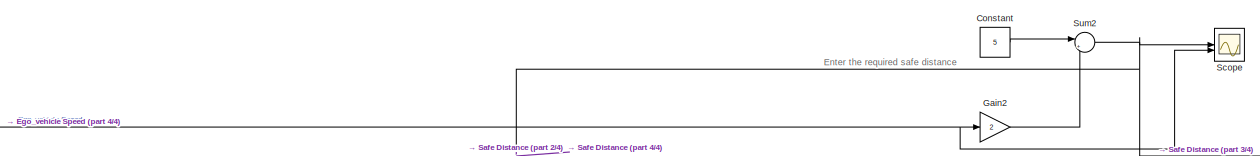
[diagram: root canvas - part 1/4, top center region]
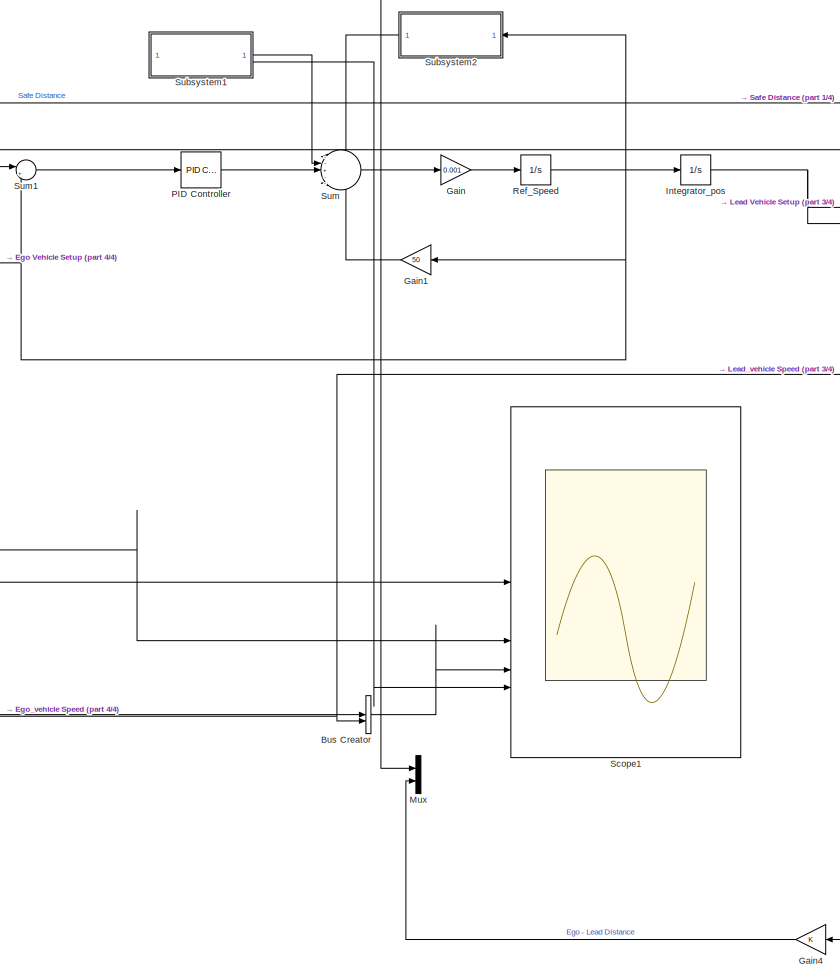
[diagram: root canvas - part 2/4, center side, full height]
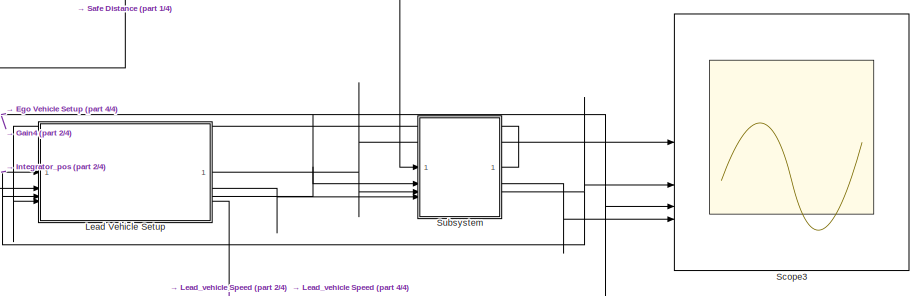
[diagram: root canvas - part 3/4, top right region]
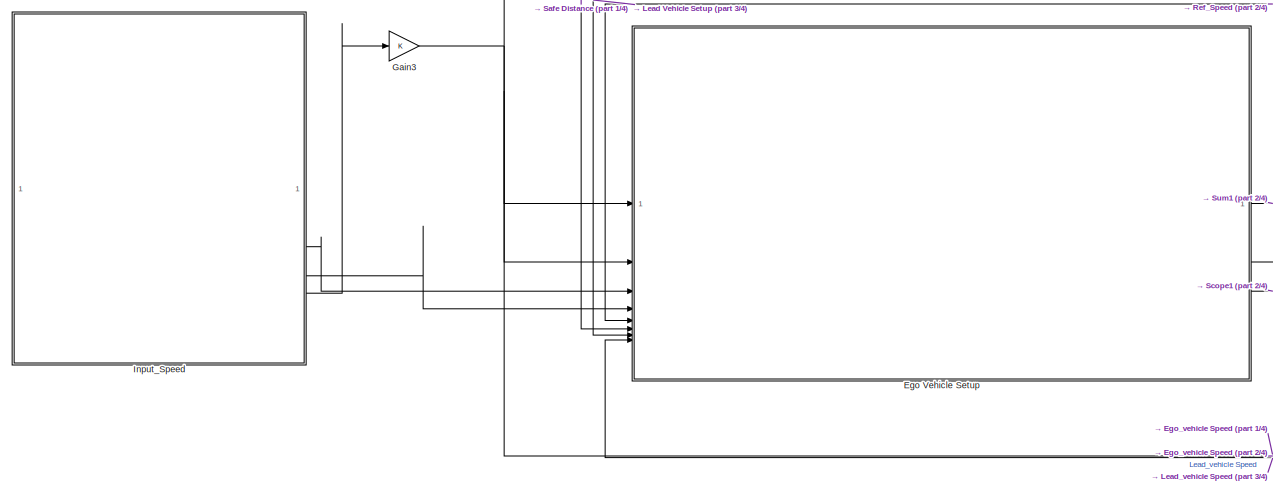
[diagram: root canvas - part 4/4, middle left region]
MODEL slx_3881ea2cf87a
KIND model
CONFIG AbsTol = auto
CONFIG EnableMultiTasking = off
CONFIG FixedStep = auto
CONFIG MaxStep = auto
CONFIG MinStep = auto
CONFIG RelTol = 1e-3
CONFIG SampleTimeConstraint = Unconstrained
CONFIG SolverName = VariableStepAuto
CONFIG StartTime = 0.0
CONFIG StopTime = 300
BLOCK [BusCreator] Bus Creator
  DisplayOption = bar
  InheritFromInputs = on
  Inputs = Ego_vehicle Speed,Lead_vehicle Speed
BLOCK [Constant] Constant
  Value = 5
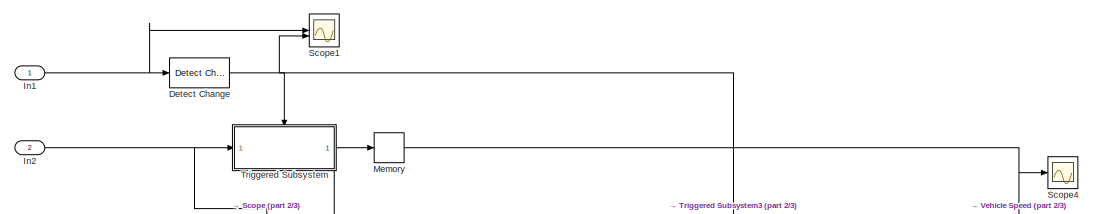
[diagram: Ego Vehicle Setup - part 1/3, top left region]
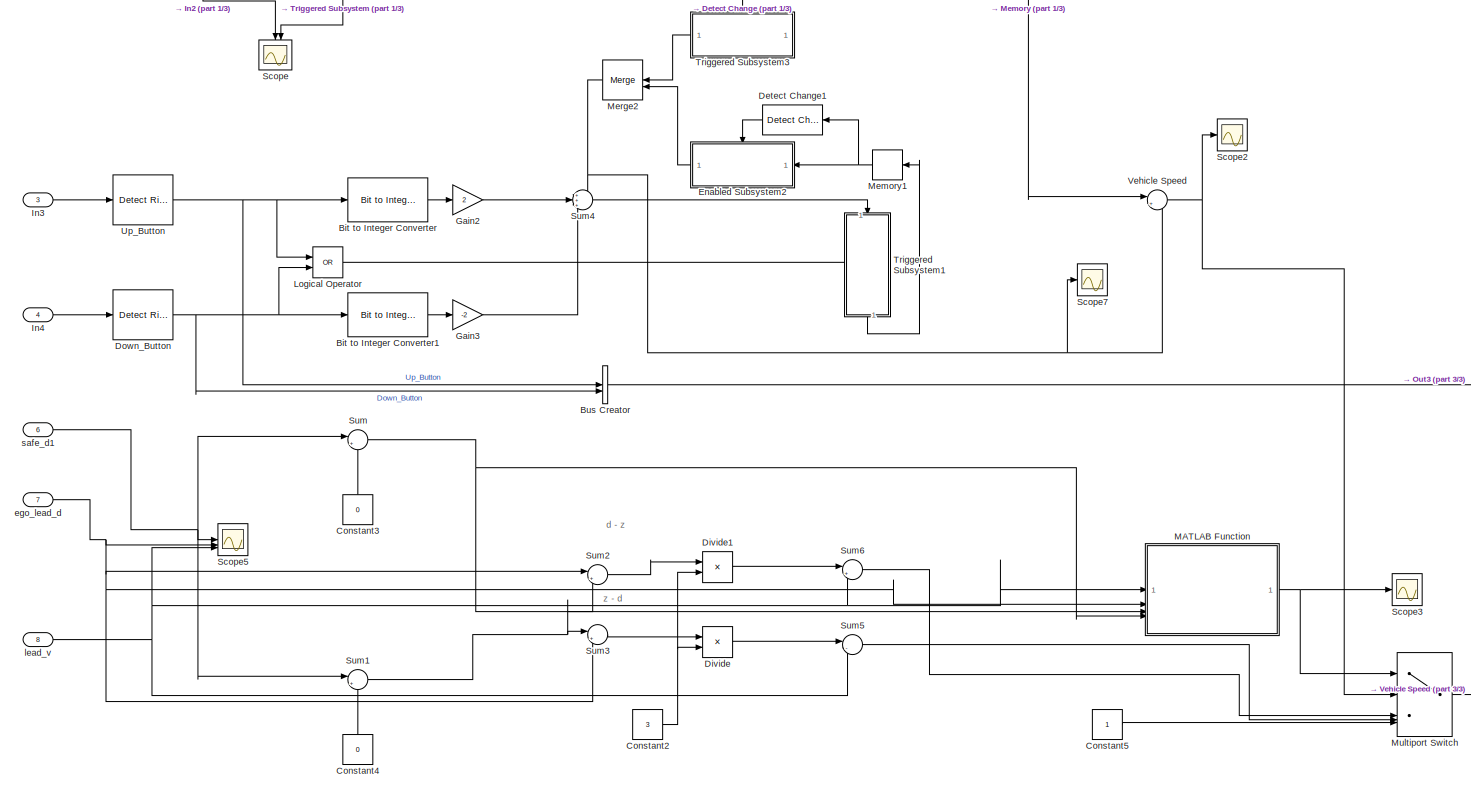
[diagram: Ego Vehicle Setup - part 2/3, most of the canvas]
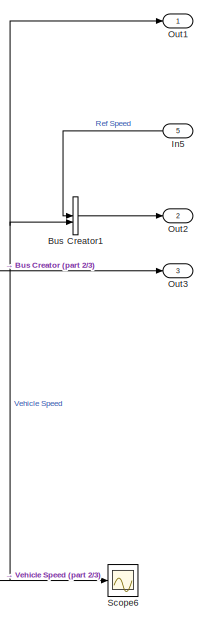
[diagram: Ego Vehicle Setup - part 3/3, middle right region]
BLOCK [SubSystem] Ego Vehicle Setup
  ShowPortLabels = SignalName
BLOCK [Reference] Ego Vehicle Setup/Bit to Integer Converter  REF=simulink/Logic and Bit
Operations/Bit to Integer
Converter
  SourceBlock = simulink/Logic and Bit\nOperations/Bit to Integer\nConverter
  SourceType = Bit to Integer Converter
BLOCK [Reference] Ego Vehicle Setup/Bit to Integer Converter1  REF=simulink/Logic and Bit
Operations/Bit to Integer
Converter
  SourceBlock = simulink/Logic and Bit\nOperations/Bit to Integer\nConverter
  SourceType = Bit to Integer Converter
BLOCK [BusCreator] Ego Vehicle Setup/Bus Creator
  DisplayOption = bar
  InheritFromInputs = on
  Inputs = Up_Button,Down_Button
BLOCK [BusCreator] Ego Vehicle Setup/Bus Creator1
  DisplayOption = bar
  InheritFromInputs = on
  Inputs = Ref Speed,Vehicle Speed
BLOCK [Constant] Ego Vehicle Setup/Constant2
  Value = 3
BLOCK [Constant] Ego Vehicle Setup/Constant3
  NameLocation = right
  Value = 0
BLOCK [Constant] Ego Vehicle Setup/Constant4
  NameLocation = right
  Value = 0
BLOCK [Constant] Ego Vehicle Setup/Constant5
BLOCK [Reference] Ego Vehicle Setup/Detect Change  REF=simulink/Logic and Bit
Operations/Detect
Change
  SourceBlock = simulink/Logic and Bit\nOperations/Detect\nChange
  SourceType = Detect Change
BLOCK [Reference] Ego Vehicle Setup/Detect Change1  REF=simulink/Logic and Bit
Operations/Detect
Change
  NameLocation = top
  SourceBlock = simulink/Logic and Bit\nOperations/Detect\nChange
  SourceType = Detect Change
BLOCK [Product] Ego Vehicle Setup/Divide
  Inputs = */
BLOCK [Product] Ego Vehicle Setup/Divide1
  Inputs = */
BLOCK [Reference] Ego Vehicle Setup/Down_Button  REF=simulink/Logic and Bit
Operations/Detect Rise
Positive
  SourceBlock = simulink/Logic and Bit\nOperations/Detect Rise\nPositive
  SourceType = Detect Rise Positive
BLOCK [SubSystem] Ego Vehicle Setup/Enabled Subsystem2
  TreatAsAtomicUnit = on
BLOCK [EnablePort] Ego Vehicle Setup/Enabled Subsystem2/Enable
BLOCK [Inport] Ego Vehicle Setup/Enabled Subsystem2/In1
BLOCK [Outport] Ego Vehicle Setup/Enabled Subsystem2/Out1
BLOCK [Gain] Ego Vehicle Setup/Gain2
  Gain = 2
BLOCK [Gain] Ego Vehicle Setup/Gain3
  Gain = -2
BLOCK [Inport] Ego Vehicle Setup/In1
BLOCK [Inport] Ego Vehicle Setup/In2
  Port = 2
BLOCK [Inport] Ego Vehicle Setup/In3
  Port = 3
BLOCK [Inport] Ego Vehicle Setup/In4
  Port = 4
BLOCK [Inport] Ego Vehicle Setup/In5
  NameLocation = top
  Port = 5
BLOCK [Logic] Ego Vehicle Setup/Logical Operator
  AllPortsSameDT = off
  Operator = OR
  OutDataTypeStr = boolean
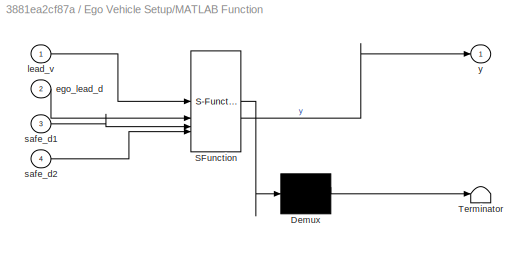
BLOCK [SubSystem] Ego Vehicle Setup/MATLAB Function
  ErrorFcn = Stateflow.Translate.translate
  LibrarySourceBlock = simulink/User-Defined\nFunctions/MATLAB Function
  PermitHierarchicalResolution = ExplicitOnly
  SFBlockType = MATLAB Function
  TreatAsAtomicUnit = on
BLOCK [Demux] Ego Vehicle Setup/MATLAB Function/ Demux 
  Outputs = 1
BLOCK [S-Function] Ego Vehicle Setup/MATLAB Function/ SFunction 
  EnableBusSupport = on
  FunctionName = sf_sfun
  PortCounts = [4 2]
  SFcnIsStateOwnerBlock = off
  SFunctionDeploymentMode = off
  Tag = Stateflow S-Function 1
BLOCK [Terminator] Ego Vehicle Setup/MATLAB Function/ Terminator 
BLOCK [Inport] Ego Vehicle Setup/MATLAB Function/ego_lead_d
  Port = 2
BLOCK [Inport] Ego Vehicle Setup/MATLAB Function/lead_v
BLOCK [Inport] Ego Vehicle Setup/MATLAB Function/safe_d1
  Port = 3
BLOCK [Inport] Ego Vehicle Setup/MATLAB Function/safe_d2
  Port = 4
BLOCK [Outport] Ego Vehicle Setup/MATLAB Function/y
BLOCK [Memory] Ego Vehicle Setup/Memory
BLOCK [Memory] Ego Vehicle Setup/Memory1
  NameLocation = top
BLOCK [Merge] Ego Vehicle Setup/Merge2
  NameLocation = top
BLOCK [MultiPortSwitch] Ego Vehicle Setup/Multiport Switch
  DataPortOrder = Zero-based contiguous
  DiagnosticForDefault = None
  InputSameDT = off
  Inputs = 4
  SaturateOnIntegerOverflow = off
  zeroidx = on
BLOCK [Outport] Ego Vehicle Setup/Out1
BLOCK [Outport] Ego Vehicle Setup/Out2
  Port = 2
BLOCK [Outport] Ego Vehicle Setup/Out3
  Port = 3
BLOCK [Scope] Ego Vehicle Setup/Scope
  Floating = off
  NameLocation = left
  NumInputPorts = 2
  ScopeSpecificationString = Simulink.scopes.TimeScopeBlockCfg('CurrentConfiguration', extmgr.ConfigurationSet(extmgr.Configuration('Core','General UI',true),extmgr.Configuration('Core','Source UI',true),extmgr.Configuration('Sources','WiredSimulink',true,'DataLoggingVariableName','ScopeData2'),extmgr.Configuration('Visuals','Time Domain',true,'SerializedDisplays',{struct('MinYLimReal','-0.33431','MaxYLimReal','103.19479','YL...<+2104ch>
BLOCK [Scope] Ego Vehicle Setup/Scope1
  Floating = off
  NumInputPorts = 2
  ScopeSpecificationString = Simulink.scopes.TimeScopeBlockCfg('CurrentConfiguration', extmgr.ConfigurationSet(extmgr.Configuration('Core','General UI',true),extmgr.Configuration('Core','Source UI',true),extmgr.Configuration('Sources','WiredSimulink',true,'DataLoggingVariableName','ScopeData3'),extmgr.Configuration('Visuals','Time Domain',true,'SerializedDisplays',{struct('MinYLimReal','-3.125','MaxYLimReal','28.125','YLabelR...<+2090ch>
BLOCK [Scope] Ego Vehicle Setup/Scope2
  Floating = off
  NumInputPorts = 1
  ScopeSpecificationString = Simulink.scopes.TimeScopeBlockCfg('CurrentConfiguration', extmgr.ConfigurationSet(extmgr.Configuration('Core','General UI',true),extmgr.Configuration('Core','Source UI',true),extmgr.Configuration('Sources','WiredSimulink',true,'DataLoggingVariableName','ScopeData1'),extmgr.Configuration('Visuals','Time Domain',true,'SerializedDisplays',{struct('MinYLimReal','-3.125','MaxYLimReal','28.125','YLabelR...<+1393ch>
BLOCK [Scope] Ego Vehicle Setup/Scope3
  Floating = off
  NumInputPorts = 1
  ScopeSpecificationString = Simulink.scopes.TimeScopeBlockCfg('CurrentConfiguration', extmgr.ConfigurationSet(extmgr.Configuration('Core','General UI',true),extmgr.Configuration('Core','Source UI',true),extmgr.Configuration('Sources','WiredSimulink',true,'DataLoggingVariableName','ScopeData2'),extmgr.Configuration('Visuals','Time Domain',true,'SerializedDisplays',{struct('MinYLimReal','-1.00000','MaxYLimReal','1.00000','YLab...<+1402ch>
BLOCK [Scope] Ego Vehicle Setup/Scope4
  Floating = off
  NumInputPorts = 1
  ScopeSpecificationString = Simulink.scopes.TimeScopeBlockCfg('CurrentConfiguration', extmgr.ConfigurationSet(extmgr.Configuration('Core','General UI',true),extmgr.Configuration('Core','Source UI',true),extmgr.Configuration('Sources','WiredSimulink',true,'DataLoggingVariableName','ScopeData1'),extmgr.Configuration('Visuals','Time Domain',true,'SerializedDisplays',{struct('MinYLimReal','-3.125','MaxYLimReal','28.125','YLabelR...<+1357ch>
BLOCK [Scope] Ego Vehicle Setup/Scope5
  Floating = off
  NumInputPorts = 3
  ScopeSpecificationString = Simulink.scopes.TimeScopeBlockCfg('CurrentConfiguration', extmgr.ConfigurationSet(extmgr.Configuration('Core','General UI',true),extmgr.Configuration('Core','Source UI',true),extmgr.Configuration('Sources','WiredSimulink',true,'DataLoggingVariableName','ScopeData4'),extmgr.Configuration('Visuals','Time Domain',true,'SerializedDisplays',{struct('MinYLimReal','4.00000','MaxYLimReal','6.00000','YLabe...<+2834ch>
BLOCK [Scope] Ego Vehicle Setup/Scope6
  Floating = off
  NumInputPorts = 1
  ScopeSpecificationString = Simulink.scopes.TimeScopeBlockCfg('CurrentConfiguration', extmgr.ConfigurationSet(extmgr.Configuration('Core','General UI',true),extmgr.Configuration('Core','Source UI',true),extmgr.Configuration('Sources','WiredSimulink',true,'DataLoggingVariableName','ScopeData5'),extmgr.Configuration('Visuals','Time Domain',true,'SerializedDisplays',{struct('MinYLimReal','-3.25','MaxYLimReal','29.25','YLabelRea...<+1386ch>
BLOCK [Scope] Ego Vehicle Setup/Scope7
  Floating = off
  NumInputPorts = 1
  ScopeSpecificationString = Simulink.scopes.TimeScopeBlockCfg('CurrentConfiguration', extmgr.ConfigurationSet(extmgr.Configuration('Core','General UI',true),extmgr.Configuration('Core','Source UI',true),extmgr.Configuration('Sources','WiredSimulink',true,'DataLoggingVariableName','ScopeData2'),extmgr.Configuration('Visuals','Time Domain',true,'SerializedDisplays',{struct('MinYLimReal','-5.00000','MaxYLimReal','5.00000','YLab...<+1394ch>
BLOCK [Sum] Ego Vehicle Setup/Sum
  Inputs = |++
BLOCK [Sum] Ego Vehicle Setup/Sum1
  Inputs = |++
BLOCK [Sum] Ego Vehicle Setup/Sum2
  Inputs = |+-
BLOCK [Sum] Ego Vehicle Setup/Sum3
  Inputs = |+-
BLOCK [Sum] Ego Vehicle Setup/Sum4
  Inputs = +++
  NameLocation = top
BLOCK [Sum] Ego Vehicle Setup/Sum5
  Inputs = |-+
BLOCK [Sum] Ego Vehicle Setup/Sum6
  Inputs = |++
BLOCK [SubSystem] Ego Vehicle Setup/Triggered Subsystem
  TreatAsAtomicUnit = on
BLOCK [Inport] Ego Vehicle Setup/Triggered Subsystem/In1
BLOCK [Outport] Ego Vehicle Setup/Triggered Subsystem/Out1
BLOCK [TriggerPort] Ego Vehicle Setup/Triggered Subsystem/Trigger
  StatesWhenEnabling = held
  VariantControl = (inherit)
BLOCK [SubSystem] Ego Vehicle Setup/Triggered Subsystem1
  NameLocation = right
  TreatAsAtomicUnit = on
BLOCK [Inport] Ego Vehicle Setup/Triggered Subsystem1/In1
BLOCK [Outport] Ego Vehicle Setup/Triggered Subsystem1/Out1
BLOCK [TriggerPort] Ego Vehicle Setup/Triggered Subsystem1/Trigger
  StatesWhenEnabling = held
  VariantControl = (inherit)
BLOCK [SubSystem] Ego Vehicle Setup/Triggered Subsystem3
  TreatAsAtomicUnit = on
BLOCK [Constant] Ego Vehicle Setup/Triggered Subsystem3/Constant
  Value = 0
BLOCK [Outport] Ego Vehicle Setup/Triggered Subsystem3/Out1
BLOCK [TriggerPort] Ego Vehicle Setup/Triggered Subsystem3/Trigger
  StatesWhenEnabling = held
  VariantControl = (inherit)
BLOCK [Reference] Ego Vehicle Setup/Up_Button  REF=simulink/Logic and Bit
Operations/Detect Rise
Positive
  SourceBlock = simulink/Logic and Bit\nOperations/Detect Rise\nPositive
  SourceType = Detect Rise Positive
BLOCK [Sum] Ego Vehicle Setup/Vehicle Speed
  Inputs = |++
BLOCK [Inport] Ego Vehicle Setup/ego_lead_d
  Port = 7
BLOCK [Inport] Ego Vehicle Setup/lead_v
  Port = 8
BLOCK [Inport] Ego Vehicle Setup/safe_d1
  Port = 6
BLOCK [Gain] Gain
  Gain = 0.001
BLOCK [Gain] Gain1
  Gain = 50
  NameLocation = top
BLOCK [Gain] Gain2
  Gain = 2
BLOCK [Gain] Gain3
BLOCK [Gain] Gain4
  NameLocation = top
BLOCK [SubSystem] Input_Speed
  ClipboardFcn = sigbuilder_block('clipboard');
  CloseFcn = sigbuilder_block('close');
  ContinueFcn = sigbuilder_block('continue');
  CopyFcn = sigbuilder_block('copy');
  DeleteFcn = sigbuilder_block('delete');
  LoadFcn = sigbuilder_block('load');
  MaskHideContents = on
  ModelCloseFcn = sigbuilder_block('modelClose');
  NameChangeFcn = sigbuilder_block('namechange');
  OpenFcn = sigbuilder_block('open',[6 30 1428 681.75 ]);
  PauseFcn = sigbuilder_block('pause');
  PreSaveFcn = sigbuilder_block('preSave');
  StartFcn = sigbuilder_block('start');
  StopFcn = sigbuilder_block('stop');
  Tag = STV Subsys
BLOCK [Demux] Input_Speed/Demux
  DisplayOption = none
  Tag = STV Demux
BLOCK [Outport] Input_Speed/Down Button
  Port = 3
  Tag = STV Outport
BLOCK [FromWorkspace] Input_Speed/FromWs
  Tag = STV FromWs
  VariableName = tuvar
BLOCK [Outport] Input_Speed/In_Speed
  Tag = STV Outport
BLOCK [Outport] Input_Speed/Signal 1
  Port = 4
  Tag = STV Outport
BLOCK [Outport] Input_Speed/Up Button
  Port = 2
  Tag = STV Outport
BLOCK [Integrator] Integrator_pos
BLOCK [SubSystem] Lead Vehicle Setup
  ShowPortLabels = SignalName
BLOCK [Abs] Lead Vehicle Setup/Abs
  SaturateOnIntegerOverflow = off
BLOCK [SubSystem] Lead Vehicle Setup/Enabled Subsystem
  TreatAsAtomicUnit = on
BLOCK [EnablePort] Lead Vehicle Setup/Enabled Subsystem/Enable
BLOCK [Inport] Lead Vehicle Setup/Enabled Subsystem/In1
BLOCK [Outport] Lead Vehicle Setup/Enabled Subsystem/Out1
BLOCK [Gain] Lead Vehicle Setup/Gain
BLOCK [Inport] Lead Vehicle Setup/In1
BLOCK [Inport] Lead Vehicle Setup/In2
  Port = 2
BLOCK [Inport] Lead Vehicle Setup/In3
  Port = 3
BLOCK [Inport] Lead Vehicle Setup/In4
  Port = 4
BLOCK [Integrator] Lead Vehicle Setup/Integrator
BLOCK [Outport] Lead Vehicle Setup/Out1
BLOCK [Outport] Lead Vehicle Setup/Out2
  Port = 2
BLOCK [Outport] Lead Vehicle Setup/Out3
  Port = 3
BLOCK [Outport] Lead Vehicle Setup/Out4
  Port = 4
BLOCK [SubSystem] Lead Vehicle Setup/Signal Builder1
  ClipboardFcn = sigbuilder_block('clipboard');
  CloseFcn = sigbuilder_block('close');
  ContinueFcn = sigbuilder_block('continue');
  CopyFcn = sigbuilder_block('copy');
  DeleteFcn = sigbuilder_block('delete');
  LoadFcn = sigbuilder_block('load');
  MaskHideContents = on
  ModelCloseFcn = sigbuilder_block('modelClose');
  NameChangeFcn = sigbuilder_block('namechange');
  OpenFcn = sigbuilder_block('open',[6 30 1428 681.75 ]);
  PauseFcn = sigbuilder_block('pause');
  PreSaveFcn = sigbuilder_block('preSave');
  StartFcn = sigbuilder_block('start');
  StopFcn = sigbuilder_block('stop');
  Tag = STV Subsys
BLOCK [Demux] Lead Vehicle Setup/Signal Builder1/Demux
  DisplayOption = none
  Outputs = 2
  Tag = STV Demux
BLOCK [FromWorkspace] Lead Vehicle Setup/Signal Builder1/FromWs
  Tag = STV FromWs
  VariableName = tuvar
BLOCK [Outport] Lead Vehicle Setup/Signal Builder1/Signal 1
  Tag = STV Outport
BLOCK [Outport] Lead Vehicle Setup/Signal Builder1/Signal 2
  Port = 2
  Tag = STV Outport
BLOCK [Sum] Lead Vehicle Setup/Sum2
  Inputs = |+-
BLOCK [SubSystem] Lead Vehicle Setup/Triggered Subsystem1
  TreatAsAtomicUnit = on
BLOCK [Inport] Lead Vehicle Setup/Triggered Subsystem1/In1
BLOCK [Outport] Lead Vehicle Setup/Triggered Subsystem1/Out1
BLOCK [TriggerPort] Lead Vehicle Setup/Triggered Subsystem1/Trigger
  StatesWhenEnabling = held
  VariantControl = (inherit)
BLOCK [Mux] Mux
  DisplayOption = bar
  Inputs = 2
BLOCK [Reference] PID Controller  REF=slpidlib/PID Controller
  LibrarySourceBlock = simulink/Continuous/PID Controller
  SourceBlock = slpidlib/PID Controller
  SourceType = PID 1dof
BLOCK [Integrator] Ref_Speed
BLOCK [Scope] Scope
  Floating = off
  NumInputPorts = 2
  ScopeSpecificationString = Simulink.scopes.TimeScopeBlockCfg('CurrentConfiguration', extmgr.ConfigurationSet(extmgr.Configuration('Core','General UI',true),extmgr.Configuration('Core','Source UI',true),extmgr.Configuration('Sources','WiredSimulink',true,'DataLoggingVariableName','ScopeData1'),extmgr.Configuration('Visuals','Time Domain',true,'SerializedDisplays',{struct('MinYLimReal','-1.25','MaxYLimReal','61.25','YLabelRea...<+2066ch>
BLOCK [Scope] Scope1
  Floating = off
  NumInputPorts = 4
  ScopeSpecificationString = Simulink.scopes.TimeScopeBlockCfg('CurrentConfiguration', extmgr.ConfigurationSet(extmgr.Configuration('Core','General UI',true),extmgr.Configuration('Core','Source UI',true),extmgr.Configuration('Sources','WiredSimulink',true),extmgr.Configuration('Visuals','Time Domain',true,'TimeAxisLabels','All','SerializedDisplays',{struct('MinYLimReal','-3.66008','MaxYLimReal','32.94049','YLabelReal','','Min...<+3580ch>
BLOCK [Scope] Scope3
  Floating = off
  NumInputPorts = 4
  ScopeSpecificationString = Simulink.scopes.TimeScopeBlockCfg('CurrentConfiguration', extmgr.ConfigurationSet(extmgr.Configuration('Core','General UI',true),extmgr.Configuration('Core','Source UI',true),extmgr.Configuration('Sources','WiredSimulink',true,'DataLoggingVariableName','ScopeData1'),extmgr.Configuration('Visuals','Time Domain',true,'SerializedDisplays',{struct('MinYLimReal','-34.28601','MaxYLimReal','308.5741','YL...<+3504ch>
BLOCK [SubSystem] Subsystem
BLOCK [Reference] Subsystem/Compare To Zero  REF=simulink/Logic and Bit
Operations/Compare
To Zero
  SourceBlock = simulink/Logic and Bit\nOperations/Compare\nTo Zero
  SourceType = Compare To Zero
BLOCK [Inport] Subsystem/In1
BLOCK [Inport] Subsystem/In2
  Port = 2
BLOCK [Inport] Subsystem/In3
  Port = 3
BLOCK [Logic] Subsystem/Logical Operator
  AllPortsSameDT = off
  OutDataTypeStr = boolean
BLOCK [Logic] Subsystem/Logical Operator1
  AllPortsSameDT = off
  OutDataTypeStr = boolean
BLOCK [Mux] Subsystem/Mux1
  DisplayOption = bar
  Inputs = 2
BLOCK [Outport] Subsystem/Out2
  Port = 2
BLOCK [Outport] Subsystem/Out3
  Port = 3
BLOCK [RelationalOperator] Subsystem/Relational Operator
  InputSameDT = off
  Operator = <
  OutDataTypeStr = boolean
  RndMeth = Simplest
BLOCK [RelationalOperator] Subsystem/Relational Operator1
  InputSameDT = off
  Operator = ==
  OutDataTypeStr = boolean
  RndMeth = Simplest
BLOCK [Sum] Subsystem/Sum3
  Inputs = |++
BLOCK [Inport] Subsystem/u
  Port = 4
BLOCK [Outport] Subsystem/y
BLOCK [SubSystem] Subsystem1
BLOCK [Gain] Subsystem1/Gain4
  Gain = 2450
BLOCK [Outport] Subsystem1/Out1
BLOCK [Outport] Subsystem1/Out2
  Port = 2
BLOCK [Scope] Subsystem1/Scope
  Floating = off
  NumInputPorts = 1
  ScopeSpecificationString = Simulink.scopes.TimeScopeBlockCfg('CurrentConfiguration', extmgr.ConfigurationSet(extmgr.Configuration('Core','General UI',true),extmgr.Configuration('Core','Source UI',true),extmgr.Configuration('Sources','WiredSimulink',true,'DataLoggingVariableName','ScopeData3'),extmgr.Configuration('Visuals','Time Domain',true,'SerializedDisplays',{struct('MinYLimReal','-2605.89204','MaxYLimReal','2605.89204'...<+1386ch>
BLOCK [SubSystem] Subsystem1/Signal Builder
  ClipboardFcn = sigbuilder_block('clipboard');
  CloseFcn = sigbuilder_block('close');
  ContinueFcn = sigbuilder_block('continue');
  CopyFcn = sigbuilder_block('copy');
  DeleteFcn = sigbuilder_block('delete');
  LoadFcn = sigbuilder_block('load');
  MaskHideContents = on
  ModelCloseFcn = sigbuilder_block('modelClose');
  NameChangeFcn = sigbuilder_block('namechange');
  OpenFcn = sigbuilder_block('open',[6 30 1428 681.75 ]);
  PauseFcn = sigbuilder_block('pause');
  PreSaveFcn = sigbuilder_block('preSave');
  StartFcn = sigbuilder_block('start');
  StopFcn = sigbuilder_block('stop');
  Tag = STV Subsys
BLOCK [Demux] Subsystem1/Signal Builder/Demux
  DisplayOption = none
  Outputs = 1
  Tag = STV Demux
BLOCK [FromWorkspace] Subsystem1/Signal Builder/FromWs
  Tag = STV FromWs
  VariableName = tuvar
BLOCK [Outport] Subsystem1/Signal Builder/Signal 1
  Tag = STV Outport
BLOCK [Trigonometry] Subsystem1/Trigonometric Function
BLOCK [SubSystem] Subsystem2
  NameLocation = top
BLOCK [Constant] Subsystem2/Constant
  Value = 0.3775
BLOCK [Inport] Subsystem2/In1
BLOCK [Outport] Subsystem2/Out1
BLOCK [Product] Subsystem2/Product
BLOCK [Product] Subsystem2/Product1
BLOCK [Sum] Subsystem2/Sum
  Inputs = |++
BLOCK [Constant] Subsystem2/Wind Speed
  NameLocation = right
  Value = 20
BLOCK [Sum] Sum
  Inputs = --+--
  NameLocation = top
BLOCK [Sum] Sum1
  Inputs = |+-
  NameLocation = top
BLOCK [Sum] Sum2
  Inputs = |++
ANNOTATION (root): Enter the required safe distance
ANNOTATION Ego Vehicle Setup: d - z
ANNOTATION Ego Vehicle Setup: z - d
ANNOTATION Lead Vehicle Setup: Integrator gives distance travelled
ANNOTATION Lead Vehicle Setup: Lead Vehicle Speed Profile
ANNOTATION Subsystem2: Enter a value (m/s) for wind speed. Negative values for headwind and Positive values for tailwind.
LINE Bus Creator:1 -> Scope1:3
LINE Constant:1 -> Sum2:1
LINE Ego Vehicle Setup/Bit to Integer Converter1:1 -> Ego Vehicle Setup/Gain3:1
LINE Ego Vehicle Setup/Bit to Integer Converter:1 -> Ego Vehicle Setup/Gain2:1
LINE Ego Vehicle Setup/Bus Creator1:1 -> Ego Vehicle Setup/Out2:1
LINE Ego Vehicle Setup/Bus Creator:1 -> Ego Vehicle Setup/Out3:1
NET Ego Vehicle Setup/Constant2:1 -> Ego Vehicle Setup/Divide1:2, Ego Vehicle Setup/Divide:2
LINE Ego Vehicle Setup/Constant3:1 -> Ego Vehicle Setup/Sum:2
LINE Ego Vehicle Setup/Constant4:1 -> Ego Vehicle Setup/Sum1:2
LINE Ego Vehicle Setup/Constant5:1 -> Ego Vehicle Setup/Multiport Switch:5
LINE Ego Vehicle Setup/Detect Change1:1 -> Ego Vehicle Setup/Enabled Subsystem2:enable
NET Ego Vehicle Setup/Detect Change:1 -> Ego Vehicle Setup/Scope1:2, Ego Vehicle Setup/Triggered Subsystem3:trigger, Ego Vehicle Setup/Triggered Subsystem:trigger
LINE Ego Vehicle Setup/Divide1:1 -> Ego Vehicle Setup/Sum6:1
LINE Ego Vehicle Setup/Divide:1 -> Ego Vehicle Setup/Sum5:1
NET Ego Vehicle Setup/Down_Button:1 -> Ego Vehicle Setup/Bit to Integer Converter1:1, Ego Vehicle Setup/Bus Creator:2, Ego Vehicle Setup/Logical Operator:2
LINE Ego Vehicle Setup/Enabled Subsystem2/In1:1 -> Ego Vehicle Setup/Enabled Subsystem2/Out1:1
LINE Ego Vehicle Setup/Enabled Subsystem2:1 -> Ego Vehicle Setup/Merge2:2
LINE Ego Vehicle Setup/Gain2:1 -> Ego Vehicle Setup/Sum4:2
LINE Ego Vehicle Setup/Gain3:1 -> Ego Vehicle Setup/Sum4:3
NET Ego Vehicle Setup/In1:1 -> Ego Vehicle Setup/Detect Change:1, Ego Vehicle Setup/Scope1:1
NET Ego Vehicle Setup/In2:1 -> Ego Vehicle Setup/Scope:1, Ego Vehicle Setup/Triggered Subsystem:1
LINE Ego Vehicle Setup/In3:1 -> Ego Vehicle Setup/Up_Button:1
LINE Ego Vehicle Setup/In4:1 -> Ego Vehicle Setup/Down_Button:1
LINE Ego Vehicle Setup/In5:1 -> Ego Vehicle Setup/Bus Creator1:1
LINE Ego Vehicle Setup/Logical Operator:1 -> Ego Vehicle Setup/Triggered Subsystem1:trigger
NET Ego Vehicle Setup/MATLAB Function:1 -> Ego Vehicle Setup/Multiport Switch:1, Ego Vehicle Setup/Scope3:1
NET Ego Vehicle Setup/Memory1:1 -> Ego Vehicle Setup/Detect Change1:1, Ego Vehicle Setup/Enabled Subsystem2:1
NET Ego Vehicle Setup/Memory:1 -> Ego Vehicle Setup/Scope4:1, Ego Vehicle Setup/Vehicle Speed:1
NET Ego Vehicle Setup/Merge2:1 -> Ego Vehicle Setup/Scope7:1, Ego Vehicle Setup/Sum4:1, Ego Vehicle Setup/Vehicle Speed:2
NET Ego Vehicle Setup/Multiport Switch:1 -> Ego Vehicle Setup/Bus Creator1:2, Ego Vehicle Setup/Out1:1, Ego Vehicle Setup/Scope6:1
NET Ego Vehicle Setup/Sum1:1 -> Ego Vehicle Setup/MATLAB Function:3, Ego Vehicle Setup/Sum3:1
LINE Ego Vehicle Setup/Sum2:1 -> Ego Vehicle Setup/Divide1:1
LINE Ego Vehicle Setup/Sum3:1 -> Ego Vehicle Setup/Divide:1
LINE Ego Vehicle Setup/Sum4:1 -> Ego Vehicle Setup/Triggered Subsystem1:1
LINE Ego Vehicle Setup/Sum5:1 -> Ego Vehicle Setup/Multiport Switch:4
LINE Ego Vehicle Setup/Sum6:1 -> Ego Vehicle Setup/Multiport Switch:3
NET Ego Vehicle Setup/Sum:1 -> Ego Vehicle Setup/MATLAB Function:4, Ego Vehicle Setup/Sum2:2
LINE Ego Vehicle Setup/Triggered Subsystem/In1:1 -> Ego Vehicle Setup/Triggered Subsystem/Out1:1
LINE Ego Vehicle Setup/Triggered Subsystem1/In1:1 -> Ego Vehicle Setup/Triggered Subsystem1/Out1:1
LINE Ego Vehicle Setup/Triggered Subsystem1:1 -> Ego Vehicle Setup/Memory1:1
LINE Ego Vehicle Setup/Triggered Subsystem3/Constant:1 -> Ego Vehicle Setup/Triggered Subsystem3/Out1:1
LINE Ego Vehicle Setup/Triggered Subsystem3:1 -> Ego Vehicle Setup/Merge2:1
NET Ego Vehicle Setup/Triggered Subsystem:1 -> Ego Vehicle Setup/Memory:1, Ego Vehicle Setup/Scope:2
NET Ego Vehicle Setup/Up_Button:1 -> Ego Vehicle Setup/Bit to Integer Converter:1, Ego Vehicle Setup/Bus Creator:1, Ego Vehicle Setup/Logical Operator:1
NET Ego Vehicle Setup/Vehicle Speed:1 -> Ego Vehicle Setup/Multiport Switch:2, Ego Vehicle Setup/Scope2:1
NET Ego Vehicle Setup/ego_lead_d:1 -> Ego Vehicle Setup/MATLAB Function:2, Ego Vehicle Setup/Scope5:2, Ego Vehicle Setup/Sum2:1, Ego Vehicle Setup/Sum3:2
NET Ego Vehicle Setup/lead_v:1 -> Ego Vehicle Setup/MATLAB Function:1, Ego Vehicle Setup/Scope5:3, Ego Vehicle Setup/Sum5:2, Ego Vehicle Setup/Sum6:2
NET Ego Vehicle Setup/safe_d1:1 -> Ego Vehicle Setup/Scope5:1, Ego Vehicle Setup/Sum1:1, Ego Vehicle Setup/Sum:1
LINE Ego Vehicle Setup:1 -> Sum1:1
LINE Ego Vehicle Setup:2 -> Scope1:1
LINE Ego Vehicle Setup:3 -> Scope1:2
LINE Gain1:1 -> Sum:5
LINE Gain2:1 -> Sum2:2
NET Gain3:1 -> Bus Creator:1, Ego Vehicle Setup:1, Ego Vehicle Setup:2, Gain2:1, Scope:2
LINE Gain4:1 -> Mux:2
LINE Gain:1 -> Ref_Speed:1
LINE Input_Speed:2 -> Ego Vehicle Setup:3
LINE Input_Speed:3 -> Ego Vehicle Setup:4
LINE Input_Speed:4 -> Gain3:1
NET Integrator_pos:1 -> Lead Vehicle Setup:1, Lead Vehicle Setup:2
LINE Lead Vehicle Setup/Abs:1 -> Lead Vehicle Setup/Enabled Subsystem:1
LINE Lead Vehicle Setup/Enabled Subsystem/In1:1 -> Lead Vehicle Setup/Enabled Subsystem/Out1:1
LINE Lead Vehicle Setup/Enabled Subsystem:1 -> Lead Vehicle Setup/Out3:1
NET Lead Vehicle Setup/Gain:1 -> Lead Vehicle Setup/Integrator:1, Lead Vehicle Setup/Out4:1
LINE Lead Vehicle Setup/In1:1 -> Lead Vehicle Setup/Triggered Subsystem1:1
LINE Lead Vehicle Setup/In2:1 -> Lead Vehicle Setup/Sum2:2
LINE Lead Vehicle Setup/In3:1 -> Lead Vehicle Setup/Sum2:1
NET Lead Vehicle Setup/In4:1 -> Lead Vehicle Setup/Enabled Subsystem:enable, Lead Vehicle Setup/Triggered Subsystem1:trigger
LINE Lead Vehicle Setup/Integrator:1 -> Lead Vehicle Setup/Out2:1
LINE Lead Vehicle Setup/Signal Builder1:2 -> Lead Vehicle Setup/Gain:1
LINE Lead Vehicle Setup/Sum2:1 -> Lead Vehicle Setup/Abs:1
LINE Lead Vehicle Setup/Triggered Subsystem1/In1:1 -> Lead Vehicle Setup/Triggered Subsystem1/Out1:1
LINE Lead Vehicle Setup/Triggered Subsystem1:1 -> Lead Vehicle Setup/Out1:1
NET Lead Vehicle Setup:1 -> Scope3:1, Subsystem:3
LINE Lead Vehicle Setup:2 -> Subsystem:4
NET Lead Vehicle Setup:3 -> Ego Vehicle Setup:7, Gain4:1, Scope3:3, Subsystem:2
NET Lead Vehicle Setup:4 -> Bus Creator:2, Ego Vehicle Setup:8
LINE PID Controller:1 -> Sum:3
NET Ref_Speed:1 -> Ego Vehicle Setup:5, Gain1:1, Integrator_pos:1, Subsystem2:1, Sum1:2
NET Subsystem/Compare To Zero:1 -> Subsystem/Logical Operator1:2, Subsystem/Logical Operator:2, Subsystem/y:1
NET Subsystem/In1:1 -> Subsystem/Relational Operator1:2, Subsystem/Relational Operator:2
NET Subsystem/In2:1 -> Subsystem/Relational Operator1:1, Subsystem/Relational Operator:1
LINE Subsystem/In3:1 -> Subsystem/Sum3:1
LINE Subsystem/Logical Operator1:1 -> Subsystem/Mux1:2
LINE Subsystem/Logical Operator:1 -> Subsystem/Mux1:1
LINE Subsystem/Mux1:1 -> Subsystem/Out2:1
LINE Subsystem/Relational Operator1:1 -> Subsystem/Logical Operator1:1
LINE Subsystem/Relational Operator:1 -> Subsystem/Logical Operator:1
LINE Subsystem/Sum3:1 -> Subsystem/Out3:1
NET Subsystem/u:1 -> Subsystem/Compare To Zero:1, Subsystem/Sum3:2
NET Subsystem1/Gain4:1 -> Subsystem1/Out1:1, Subsystem1/Scope:1
NET Subsystem1/Signal Builder:1 -> Subsystem1/Out2:1, Subsystem1/Trigonometric Function:1
LINE Subsystem1/Trigonometric Function:1 -> Subsystem1/Gain4:1
LINE Subsystem1:1 -> Sum:2
LINE Subsystem1:2 -> Scope1:4
LINE Subsystem2/Constant:1 -> Subsystem2/Product1:2
LINE Subsystem2/In1:1 -> Subsystem2/Sum:1
LINE Subsystem2/Product1:1 -> Subsystem2/Out1:1
LINE Subsystem2/Product:1 -> Subsystem2/Product1:1
NET Subsystem2/Sum:1 -> Subsystem2/Product:1, Subsystem2/Product:2
LINE Subsystem2/Wind Speed:1 -> Subsystem2/Sum:2
LINE Subsystem2:1 -> Sum:1
LINE Subsystem:1 -> Lead Vehicle Setup:4
LINE Subsystem:2 -> Scope3:4
NET Subsystem:3 -> Lead Vehicle Setup:3, Scope3:2
LINE Sum1:1 -> PID Controller:1
NET Sum2:1 -> Ego Vehicle Setup:6, Mux:1, Scope:1, Subsystem:1
LINE Sum:1 -> Gain:1
note: NET lines group one-source signal fan-out (src -> all destinations, sorted); 1:1 wires keep LINE
CHART Ego Vehicle Setup/MATLAB Function states=1 transitions=1
  STATE_LABEL 'eML_blk_kernel()'
  STATE_LABEL 'SCRIPT:\nfunction y = signal_selector(lead_v, ego_lead_d, safe_d1, safe_d2)\n    if lead_v == 0\n        y = 0;  % Select A\n    elseif lead_v > 0 && ego_lead_d >= safe_d2\n        y = 1;  % Select B\n    elseif lead_v > 0 && ego_lead_d <= safe_d1\n        y = 2;  % Select C\n    else\n        y = 3;  % Default case (optional, define what this means)\n    end\nend\n'
CHART  states=0 transitions=0
